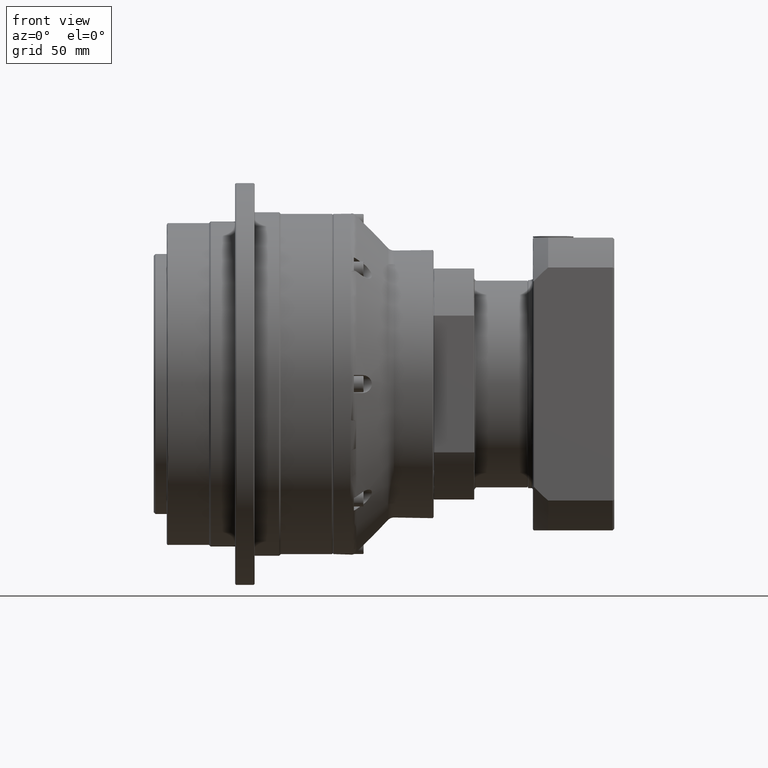
[diagram: clean part render]
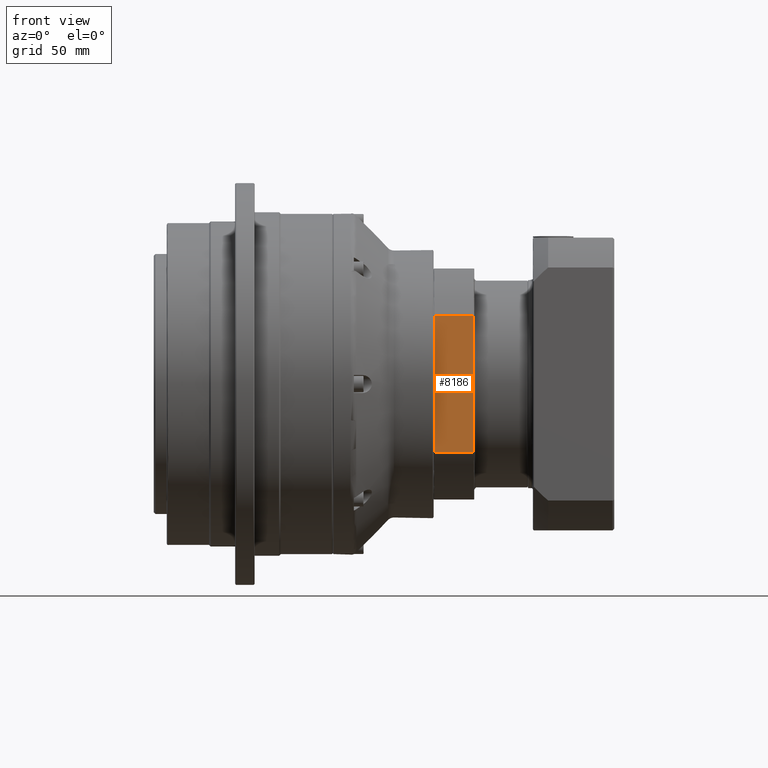
[diagram: same view with one face highlighted and labeled with its STEP entity id]
A machine part, front view. The second image highlights one B-rep face of the part: STEP entity #8186.
In plain terms, the highlighted planar face has unit normal (-0, -1, 0).
Its self-contained STEP definition (entity closure, byte-faithful):
#354=LINE('',#13425,#691);
#359=LINE('',#13435,#696);
#360=LINE('',#13439,#697);
#361=LINE('',#13440,#698);
#691=VECTOR('',#10607,84.0297566341829);
#696=VECTOR('',#10616,24.);
#697=VECTOR('',#10621,24.);
#698=VECTOR('',#10622,84.0297566341829);
#2189=FACE_OUTER_BOUND('',#2896,.T.);
#2896=EDGE_LOOP('',(#6496,#6497,#6498,#6499));
#4225=VERTEX_POINT('',#13294);
#4236=VERTEX_POINT('',#13406);
#4240=VERTEX_POINT('',#13434);
#4241=VERTEX_POINT('',#13438);
#5096=EDGE_CURVE('',#4225,#4236,#354,.T.);
#5101=EDGE_CURVE('',#4240,#4236,#359,.T.);
#5103=EDGE_CURVE('',#4225,#4241,#360,.T.);
#5104=EDGE_CURVE('',#4240,#4241,#361,.T.);
#6496=ORIENTED_EDGE('',*,*,#5096,.F.);
#6497=ORIENTED_EDGE('',*,*,#5103,.T.);
#6498=ORIENTED_EDGE('',*,*,#5104,.F.);
#6499=ORIENTED_EDGE('',*,*,#5101,.T.);
#7795=PLANE('',#8996);
#8186=ADVANCED_FACE('',(#2189),#7795,.T.);
#8996=AXIS2_PLACEMENT_3D('',#13437,#10619,#10620);
#10607=DIRECTION('',(3.59354030689539E-15,3.24759780882867E-15,1.));
#10616=DIRECTION('',(-1.,2.57445824932056E-16,3.59354030689539E-15));
#10619=DIRECTION('center_axis',(-2.57445824932044E-16,-1.,3.24759780882867E-15));
#10620=DIRECTION('ref_axis',(2.8421709430404E-15,2.8421709430404E-15,1.));
#10621=DIRECTION('',(1.,-2.57445824932056E-16,-3.59354030689539E-15));
#10622=DIRECTION('',(-3.59354030689539E-15,-3.24759780882867E-15,-1.));
#13294=CARTESIAN_POINT('',(132.253312733,-186.418937513062,131.728539754084));
#13406=CARTESIAN_POINT('',(132.253312733,-186.418937513062,215.758296388267));
#13425=CARTESIAN_POINT('',(132.253312733,-186.418937513062,138.243418071176));
#13434=CARTESIAN_POINT('',(156.253312733,-186.418937513062,215.758296388267));
#13435=CARTESIAN_POINT('',(156.753312733,-186.418937513062,215.758296388267));
#13437=CARTESIAN_POINT('Origin',(156.753312733,-186.418937513062,102.743418071175));
#13438=CARTESIAN_POINT('',(156.253312733,-186.418937513062,131.728539754084));
#13439=CARTESIAN_POINT('',(156.753312733,-186.418937513062,131.728539754084));
#13440=CARTESIAN_POINT('',(156.253312733,-186.418937513062,138.243418071175));